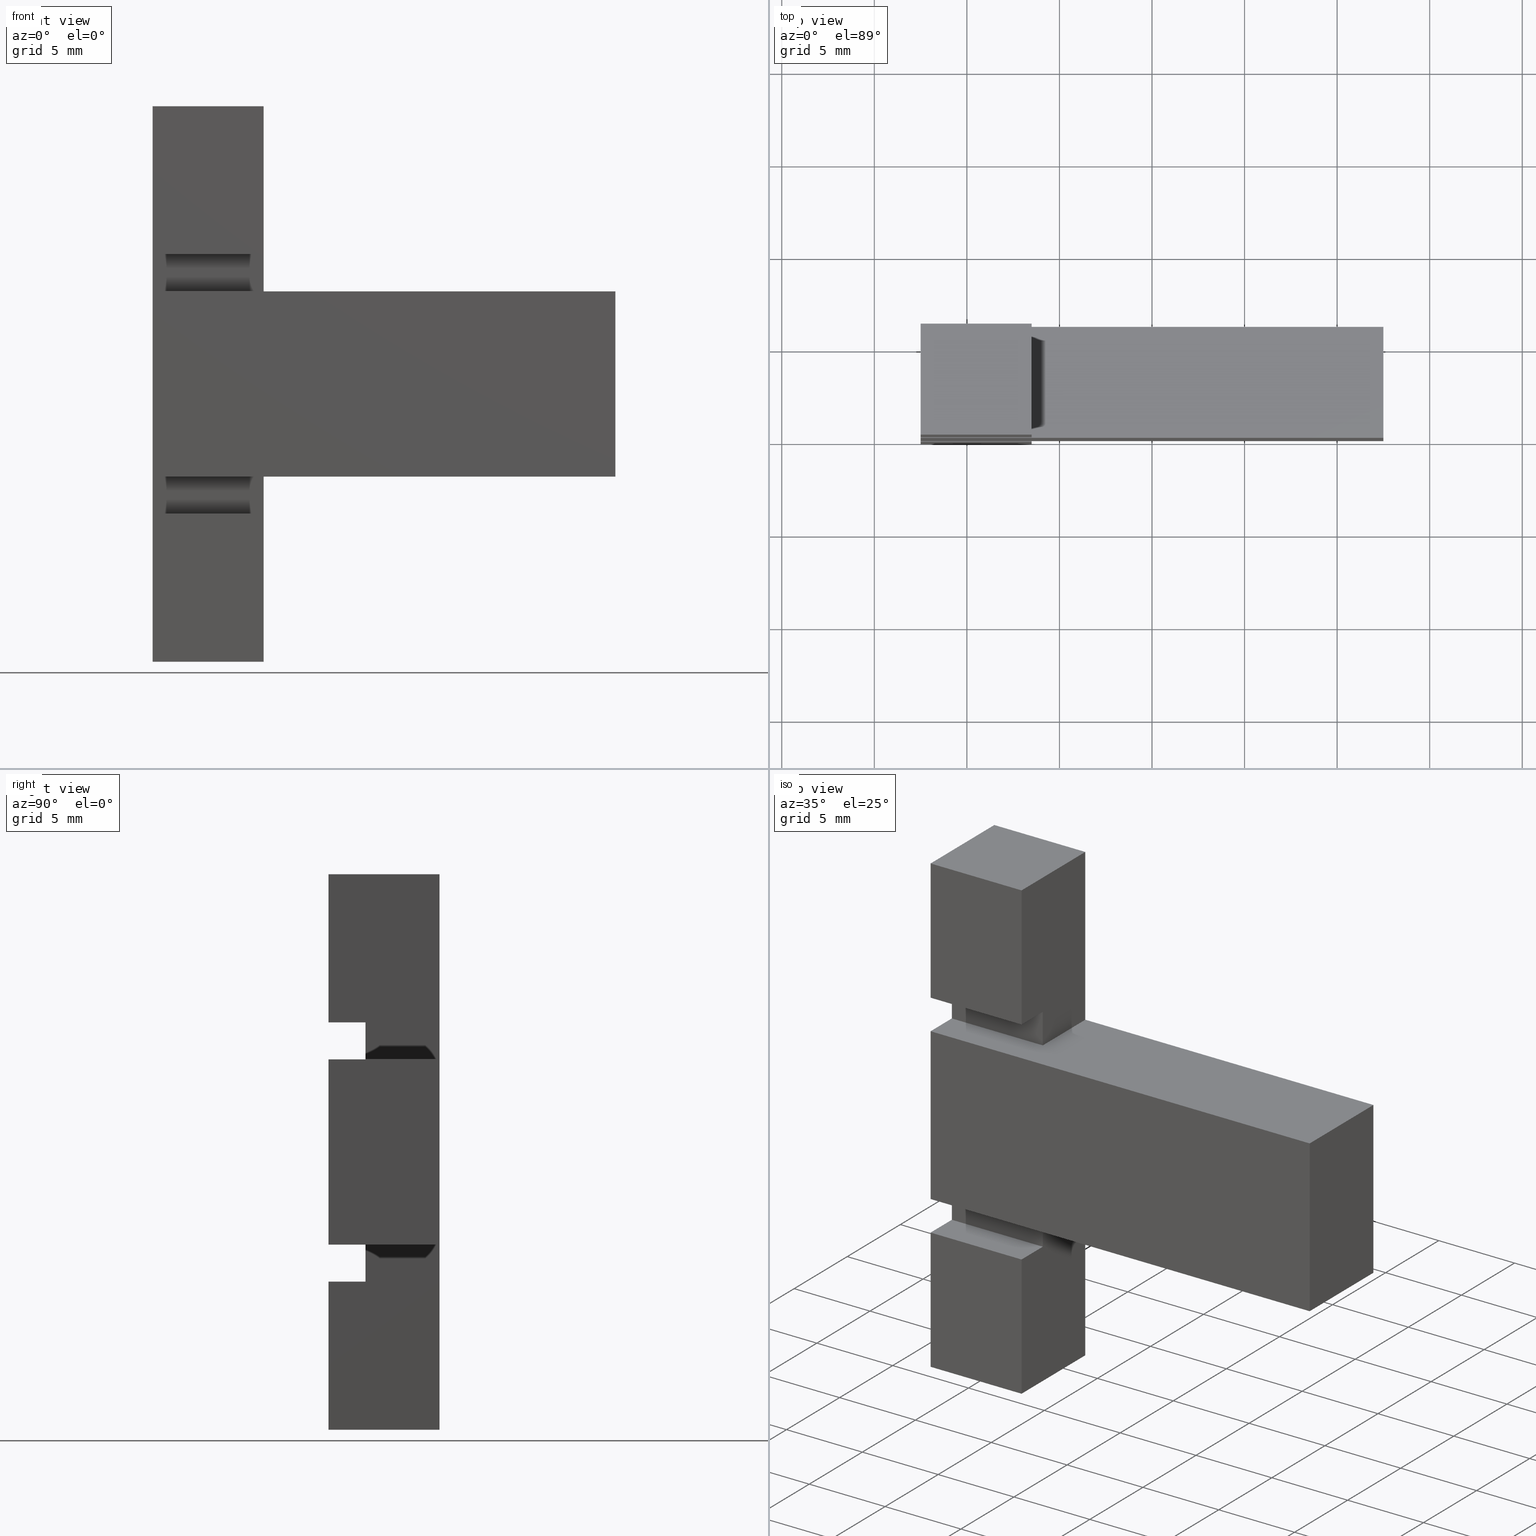
[diagram: canonical four-view strip — front | top / right | iso, engineering-drawing reading convention]
A machine part, canonical four-view strip (front | top / right | iso — engineering-drawing reading convention). The complete STEP part file that produces these views, byte-faithful:
ISO-10303-21;
HEADER;
/* Generated by software containing ST-Developer
 * from STEP Tools, Inc. (www.steptools.com) 
 */

FILE_DESCRIPTION(
/* description */ ('WKZ-0450'),
/* implementation_level */ '2;1');

FILE_NAME(
/* name */ 
'H:\\Eigene Dateien\\CAD Workspace Vault\\CAD\\E_3_Nocken\\E_3_01_Aufs
chwei\X\DFnocke\\04_T- Form, L-Form\\E_3_01_04_15_00_WKZ-0450.stp',
/* time_stamp */ '2024-01-11T12:47:46+01:00',
/* author */ ('dfischer'),
/* organization */ (''),
/* preprocessor_version */ 'ST-DEVELOPER v18.1',
/* originating_system */ 'Autodesk Inventor 2021',
/* authorisation */ '');

FILE_SCHEMA (('AUTOMOTIVE_DESIGN { 1 0 10303 214 3 1 1 }'));
ENDSEC;

DATA;
#10=MECHANICAL_DESIGN_GEOMETRIC_PRESENTATION_REPRESENTATION('',(#13),#519);
#11=SHAPE_REPRESENTATION_RELATIONSHIP('SRR','None',#526,#12);
#12=ADVANCED_BREP_SHAPE_REPRESENTATION('',(#14),#518);
#13=STYLED_ITEM('',(#535),#14);
#14=MANIFOLD_SOLID_BREP('Volumenk\X\F6rper1',#317);
#15=FACE_OUTER_BOUND('',#31,.T.);
#16=FACE_OUTER_BOUND('',#32,.T.);
#17=FACE_OUTER_BOUND('',#33,.T.);
#18=FACE_OUTER_BOUND('',#34,.T.);
#19=FACE_OUTER_BOUND('',#35,.T.);
#20=FACE_OUTER_BOUND('',#36,.T.);
#21=FACE_OUTER_BOUND('',#37,.T.);
#22=FACE_OUTER_BOUND('',#38,.T.);
#23=FACE_OUTER_BOUND('',#39,.T.);
#24=FACE_OUTER_BOUND('',#40,.T.);
#25=FACE_OUTER_BOUND('',#41,.T.);
#26=FACE_OUTER_BOUND('',#42,.T.);
#27=FACE_OUTER_BOUND('',#43,.T.);
#28=FACE_OUTER_BOUND('',#44,.T.);
#29=FACE_OUTER_BOUND('',#45,.T.);
#30=FACE_OUTER_BOUND('',#46,.T.);
#31=EDGE_LOOP('',(#201,#202,#203,#204));
#32=EDGE_LOOP('',(#205,#206,#207,#208));
#33=EDGE_LOOP('',(#209,#210,#211,#212));
#34=EDGE_LOOP('',(#213,#214,#215,#216));
#35=EDGE_LOOP('',(#217,#218,#219,#220));
#36=EDGE_LOOP('',(#221,#222,#223,#224));
#37=EDGE_LOOP('',(#225,#226,#227,#228,#229,#230,#231,#232,#233,#234,#235,
#236));
#38=EDGE_LOOP('',(#237,#238,#239,#240));
#39=EDGE_LOOP('',(#241,#242,#243,#244,#245,#246));
#40=EDGE_LOOP('',(#247,#248,#249,#250,#251,#252));
#41=EDGE_LOOP('',(#253,#254,#255,#256));
#42=EDGE_LOOP('',(#257,#258,#259,#260));
#43=EDGE_LOOP('',(#261,#262,#263,#264,#265,#266));
#44=EDGE_LOOP('',(#267,#268,#269,#270,#271,#272));
#45=EDGE_LOOP('',(#273,#274,#275,#276,#277,#278,#279,#280));
#46=EDGE_LOOP('',(#281,#282,#283,#284));
#47=LINE('',#433,#89);
#48=LINE('',#435,#90);
#49=LINE('',#437,#91);
#50=LINE('',#438,#92);
#51=LINE('',#441,#93);
#52=LINE('',#443,#94);
#53=LINE('',#444,#95);
#54=LINE('',#448,#96);
#55=LINE('',#450,#97);
#56=LINE('',#452,#98);
#57=LINE('',#453,#99);
#58=LINE('',#456,#100);
#59=LINE('',#458,#101);
#60=LINE('',#459,#102);
#61=LINE('',#462,#103);
#62=LINE('',#464,#104);
#63=LINE('',#465,#105);
#64=LINE('',#469,#106);
#65=LINE('',#471,#107);
#66=LINE('',#473,#108);
#67=LINE('',#474,#109);
#68=LINE('',#476,#110);
#69=LINE('',#477,#111);
#70=LINE('',#479,#112);
#71=LINE('',#481,#113);
#72=LINE('',#483,#114);
#73=LINE('',#484,#115);
#74=LINE('',#487,#116);
#75=LINE('',#489,#117);
#76=LINE('',#490,#118);
#77=LINE('',#493,#119);
#78=LINE('',#494,#120);
#79=LINE('',#497,#121);
#80=LINE('',#498,#122);
#81=LINE('',#500,#123);
#82=LINE('',#503,#124);
#83=LINE('',#505,#125);
#84=LINE('',#506,#126);
#85=LINE('',#508,#127);
#86=LINE('',#510,#128);
#87=LINE('',#511,#129);
#88=LINE('',#513,#130);
#89=VECTOR('',#357,10.);
#90=VECTOR('',#358,10.);
#91=VECTOR('',#359,10.);
#92=VECTOR('',#360,10.);
#93=VECTOR('',#363,10.);
#94=VECTOR('',#364,10.);
#95=VECTOR('',#365,10.);
#96=VECTOR('',#368,10.);
#97=VECTOR('',#369,10.);
#98=VECTOR('',#370,10.);
#99=VECTOR('',#371,10.);
#100=VECTOR('',#374,10.);
#101=VECTOR('',#375,10.);
#102=VECTOR('',#376,10.);
#103=VECTOR('',#379,10.);
#104=VECTOR('',#380,10.);
#105=VECTOR('',#381,10.);
#106=VECTOR('',#384,10.);
#107=VECTOR('',#385,10.);
#108=VECTOR('',#386,10.);
#109=VECTOR('',#387,10.);
#110=VECTOR('',#390,10.);
#111=VECTOR('',#391,10.);
#112=VECTOR('',#392,10.);
#113=VECTOR('',#393,10.);
#114=VECTOR('',#394,10.);
#115=VECTOR('',#395,10.);
#116=VECTOR('',#398,10.);
#117=VECTOR('',#399,10.);
#118=VECTOR('',#400,10.);
#119=VECTOR('',#403,10.);
#120=VECTOR('',#404,10.);
#121=VECTOR('',#407,10.);
#122=VECTOR('',#408,10.);
#123=VECTOR('',#411,10.);
#124=VECTOR('',#414,10.);
#125=VECTOR('',#415,10.);
#126=VECTOR('',#416,10.);
#127=VECTOR('',#419,10.);
#128=VECTOR('',#420,10.);
#129=VECTOR('',#421,10.);
#130=VECTOR('',#424,10.);
#131=VERTEX_POINT('',#431);
#132=VERTEX_POINT('',#432);
#133=VERTEX_POINT('',#434);
#134=VERTEX_POINT('',#436);
#135=VERTEX_POINT('',#440);
#136=VERTEX_POINT('',#442);
#137=VERTEX_POINT('',#446);
#138=VERTEX_POINT('',#447);
#139=VERTEX_POINT('',#449);
#140=VERTEX_POINT('',#451);
#141=VERTEX_POINT('',#455);
#142=VERTEX_POINT('',#457);
#143=VERTEX_POINT('',#461);
#144=VERTEX_POINT('',#463);
#145=VERTEX_POINT('',#467);
#146=VERTEX_POINT('',#468);
#147=VERTEX_POINT('',#470);
#148=VERTEX_POINT('',#472);
#149=VERTEX_POINT('',#478);
#150=VERTEX_POINT('',#480);
#151=VERTEX_POINT('',#482);
#152=VERTEX_POINT('',#486);
#153=VERTEX_POINT('',#488);
#154=VERTEX_POINT('',#492);
#155=VERTEX_POINT('',#496);
#156=VERTEX_POINT('',#502);
#157=VERTEX_POINT('',#504);
#158=VERTEX_POINT('',#509);
#159=EDGE_CURVE('',#131,#132,#47,.T.);
#160=EDGE_CURVE('',#131,#133,#48,.T.);
#161=EDGE_CURVE('',#134,#133,#49,.T.);
#162=EDGE_CURVE('',#132,#134,#50,.T.);
#163=EDGE_CURVE('',#135,#131,#51,.T.);
#164=EDGE_CURVE('',#135,#136,#52,.T.);
#165=EDGE_CURVE('',#133,#136,#53,.T.);
#166=EDGE_CURVE('',#137,#138,#54,.T.);
#167=EDGE_CURVE('',#137,#139,#55,.T.);
#168=EDGE_CURVE('',#140,#139,#56,.T.);
#169=EDGE_CURVE('',#138,#140,#57,.T.);
#170=EDGE_CURVE('',#141,#137,#58,.T.);
#171=EDGE_CURVE('',#142,#141,#59,.T.);
#172=EDGE_CURVE('',#139,#142,#60,.T.);
#173=EDGE_CURVE('',#143,#141,#61,.T.);
#174=EDGE_CURVE('',#144,#143,#62,.T.);
#175=EDGE_CURVE('',#142,#144,#63,.T.);
#176=EDGE_CURVE('',#145,#146,#64,.T.);
#177=EDGE_CURVE('',#147,#145,#65,.T.);
#178=EDGE_CURVE('',#147,#148,#66,.T.);
#179=EDGE_CURVE('',#146,#148,#67,.T.);
#180=EDGE_CURVE('',#136,#146,#68,.T.);
#181=EDGE_CURVE('',#148,#140,#69,.T.);
#182=EDGE_CURVE('',#144,#149,#70,.T.);
#183=EDGE_CURVE('',#150,#149,#71,.T.);
#184=EDGE_CURVE('',#151,#150,#72,.T.);
#185=EDGE_CURVE('',#151,#134,#73,.T.);
#186=EDGE_CURVE('',#145,#152,#74,.T.);
#187=EDGE_CURVE('',#153,#152,#75,.T.);
#188=EDGE_CURVE('',#147,#153,#76,.T.);
#189=EDGE_CURVE('',#154,#153,#77,.T.);
#190=EDGE_CURVE('',#138,#154,#78,.T.);
#191=EDGE_CURVE('',#155,#154,#79,.T.);
#192=EDGE_CURVE('',#143,#155,#80,.T.);
#193=EDGE_CURVE('',#149,#155,#81,.T.);
#194=EDGE_CURVE('',#156,#151,#82,.T.);
#195=EDGE_CURVE('',#157,#150,#83,.T.);
#196=EDGE_CURVE('',#156,#157,#84,.T.);
#197=EDGE_CURVE('',#132,#156,#85,.T.);
#198=EDGE_CURVE('',#158,#157,#86,.T.);
#199=EDGE_CURVE('',#135,#158,#87,.T.);
#200=EDGE_CURVE('',#152,#158,#88,.T.);
#201=ORIENTED_EDGE('',*,*,#159,.F.);
#202=ORIENTED_EDGE('',*,*,#160,.T.);
#203=ORIENTED_EDGE('',*,*,#161,.F.);
#204=ORIENTED_EDGE('',*,*,#162,.F.);
#205=ORIENTED_EDGE('',*,*,#163,.F.);
#206=ORIENTED_EDGE('',*,*,#164,.T.);
#207=ORIENTED_EDGE('',*,*,#165,.F.);
#208=ORIENTED_EDGE('',*,*,#160,.F.);
#209=ORIENTED_EDGE('',*,*,#166,.F.);
#210=ORIENTED_EDGE('',*,*,#167,.T.);
#211=ORIENTED_EDGE('',*,*,#168,.F.);
#212=ORIENTED_EDGE('',*,*,#169,.F.);
#213=ORIENTED_EDGE('',*,*,#170,.F.);
#214=ORIENTED_EDGE('',*,*,#171,.F.);
#215=ORIENTED_EDGE('',*,*,#172,.F.);
#216=ORIENTED_EDGE('',*,*,#167,.F.);
#217=ORIENTED_EDGE('',*,*,#171,.T.);
#218=ORIENTED_EDGE('',*,*,#173,.F.);
#219=ORIENTED_EDGE('',*,*,#174,.F.);
#220=ORIENTED_EDGE('',*,*,#175,.F.);
#221=ORIENTED_EDGE('',*,*,#176,.F.);
#222=ORIENTED_EDGE('',*,*,#177,.F.);
#223=ORIENTED_EDGE('',*,*,#178,.T.);
#224=ORIENTED_EDGE('',*,*,#179,.F.);
#225=ORIENTED_EDGE('',*,*,#161,.T.);
#226=ORIENTED_EDGE('',*,*,#165,.T.);
#227=ORIENTED_EDGE('',*,*,#180,.T.);
#228=ORIENTED_EDGE('',*,*,#179,.T.);
#229=ORIENTED_EDGE('',*,*,#181,.T.);
#230=ORIENTED_EDGE('',*,*,#168,.T.);
#231=ORIENTED_EDGE('',*,*,#172,.T.);
#232=ORIENTED_EDGE('',*,*,#175,.T.);
#233=ORIENTED_EDGE('',*,*,#182,.T.);
#234=ORIENTED_EDGE('',*,*,#183,.F.);
#235=ORIENTED_EDGE('',*,*,#184,.F.);
#236=ORIENTED_EDGE('',*,*,#185,.T.);
#237=ORIENTED_EDGE('',*,*,#177,.T.);
#238=ORIENTED_EDGE('',*,*,#186,.T.);
#239=ORIENTED_EDGE('',*,*,#187,.F.);
#240=ORIENTED_EDGE('',*,*,#188,.F.);
#241=ORIENTED_EDGE('',*,*,#178,.F.);
#242=ORIENTED_EDGE('',*,*,#188,.T.);
#243=ORIENTED_EDGE('',*,*,#189,.F.);
#244=ORIENTED_EDGE('',*,*,#190,.F.);
#245=ORIENTED_EDGE('',*,*,#169,.T.);
#246=ORIENTED_EDGE('',*,*,#181,.F.);
#247=ORIENTED_EDGE('',*,*,#166,.T.);
#248=ORIENTED_EDGE('',*,*,#190,.T.);
#249=ORIENTED_EDGE('',*,*,#191,.F.);
#250=ORIENTED_EDGE('',*,*,#192,.F.);
#251=ORIENTED_EDGE('',*,*,#173,.T.);
#252=ORIENTED_EDGE('',*,*,#170,.T.);
#253=ORIENTED_EDGE('',*,*,#174,.T.);
#254=ORIENTED_EDGE('',*,*,#192,.T.);
#255=ORIENTED_EDGE('',*,*,#193,.F.);
#256=ORIENTED_EDGE('',*,*,#182,.F.);
#257=ORIENTED_EDGE('',*,*,#194,.T.);
#258=ORIENTED_EDGE('',*,*,#184,.T.);
#259=ORIENTED_EDGE('',*,*,#195,.F.);
#260=ORIENTED_EDGE('',*,*,#196,.F.);
#261=ORIENTED_EDGE('',*,*,#159,.T.);
#262=ORIENTED_EDGE('',*,*,#197,.T.);
#263=ORIENTED_EDGE('',*,*,#196,.T.);
#264=ORIENTED_EDGE('',*,*,#198,.F.);
#265=ORIENTED_EDGE('',*,*,#199,.F.);
#266=ORIENTED_EDGE('',*,*,#163,.T.);
#267=ORIENTED_EDGE('',*,*,#176,.T.);
#268=ORIENTED_EDGE('',*,*,#180,.F.);
#269=ORIENTED_EDGE('',*,*,#164,.F.);
#270=ORIENTED_EDGE('',*,*,#199,.T.);
#271=ORIENTED_EDGE('',*,*,#200,.F.);
#272=ORIENTED_EDGE('',*,*,#186,.F.);
#273=ORIENTED_EDGE('',*,*,#200,.T.);
#274=ORIENTED_EDGE('',*,*,#198,.T.);
#275=ORIENTED_EDGE('',*,*,#195,.T.);
#276=ORIENTED_EDGE('',*,*,#183,.T.);
#277=ORIENTED_EDGE('',*,*,#193,.T.);
#278=ORIENTED_EDGE('',*,*,#191,.T.);
#279=ORIENTED_EDGE('',*,*,#189,.T.);
#280=ORIENTED_EDGE('',*,*,#187,.T.);
#281=ORIENTED_EDGE('',*,*,#162,.T.);
#282=ORIENTED_EDGE('',*,*,#185,.F.);
#283=ORIENTED_EDGE('',*,*,#194,.F.);
#284=ORIENTED_EDGE('',*,*,#197,.F.);
#285=PLANE('',#337);
#286=PLANE('',#338);
#287=PLANE('',#339);
#288=PLANE('',#340);
#289=PLANE('',#341);
#290=PLANE('',#342);
#291=PLANE('',#343);
#292=PLANE('',#344);
#293=PLANE('',#345);
#294=PLANE('',#346);
#295=PLANE('',#347);
#296=PLANE('',#348);
#297=PLANE('',#349);
#298=PLANE('',#350);
#299=PLANE('',#351);
#300=PLANE('',#352);
#301=ADVANCED_FACE('',(#15),#285,.F.);
#302=ADVANCED_FACE('',(#16),#286,.F.);
#303=ADVANCED_FACE('',(#17),#287,.F.);
#304=ADVANCED_FACE('',(#18),#288,.F.);
#305=ADVANCED_FACE('',(#19),#289,.F.);
#306=ADVANCED_FACE('',(#20),#290,.F.);
#307=ADVANCED_FACE('',(#21),#291,.T.);
#308=ADVANCED_FACE('',(#22),#292,.T.);
#309=ADVANCED_FACE('',(#23),#293,.T.);
#310=ADVANCED_FACE('',(#24),#294,.T.);
#311=ADVANCED_FACE('',(#25),#295,.T.);
#312=ADVANCED_FACE('',(#26),#296,.T.);
#313=ADVANCED_FACE('',(#27),#297,.T.);
#314=ADVANCED_FACE('',(#28),#298,.T.);
#315=ADVANCED_FACE('',(#29),#299,.T.);
#316=ADVANCED_FACE('',(#30),#300,.F.);
#317=CLOSED_SHELL('',(#301,#302,#303,#304,#305,#306,#307,#308,#309,#310,
#311,#312,#313,#314,#315,#316));
#318=DERIVED_UNIT_ELEMENT(#320,1.);
#319=DERIVED_UNIT_ELEMENT(#521,3.);
#320=(
MASS_UNIT()
NAMED_UNIT(*)
SI_UNIT($,.GRAM.)
);
#321=DERIVED_UNIT((#318,#319));
#322=MEASURE_REPRESENTATION_ITEM('density measure',
POSITIVE_RATIO_MEASURE(1.),#321);
#323=PROPERTY_DEFINITION_REPRESENTATION(#328,#325);
#324=PROPERTY_DEFINITION_REPRESENTATION(#329,#326);
#325=REPRESENTATION('material name',(#327),#518);
#326=REPRESENTATION('density',(#322),#518);
#327=DESCRIPTIVE_REPRESENTATION_ITEM('Generisch','Generisch');
#328=PROPERTY_DEFINITION('material property','material name',#528);
#329=PROPERTY_DEFINITION('material property','density of part',#528);
#330=DATE_TIME_ROLE('creation_date');
#331=APPLIED_DATE_AND_TIME_ASSIGNMENT(#332,#330,(#528));
#332=DATE_AND_TIME(#333,#334);
#333=CALENDAR_DATE(2023,20,7);
#334=LOCAL_TIME(0,0,0.,#335);
#335=COORDINATED_UNIVERSAL_TIME_OFFSET(0,0,.BEHIND.);
#336=AXIS2_PLACEMENT_3D('placement',#429,#353,#354);
#337=AXIS2_PLACEMENT_3D('',#430,#355,#356);
#338=AXIS2_PLACEMENT_3D('',#439,#361,#362);
#339=AXIS2_PLACEMENT_3D('',#445,#366,#367);
#340=AXIS2_PLACEMENT_3D('',#454,#372,#373);
#341=AXIS2_PLACEMENT_3D('',#460,#377,#378);
#342=AXIS2_PLACEMENT_3D('',#466,#382,#383);
#343=AXIS2_PLACEMENT_3D('',#475,#388,#389);
#344=AXIS2_PLACEMENT_3D('',#485,#396,#397);
#345=AXIS2_PLACEMENT_3D('',#491,#401,#402);
#346=AXIS2_PLACEMENT_3D('',#495,#405,#406);
#347=AXIS2_PLACEMENT_3D('',#499,#409,#410);
#348=AXIS2_PLACEMENT_3D('',#501,#412,#413);
#349=AXIS2_PLACEMENT_3D('',#507,#417,#418);
#350=AXIS2_PLACEMENT_3D('',#512,#422,#423);
#351=AXIS2_PLACEMENT_3D('',#514,#425,#426);
#352=AXIS2_PLACEMENT_3D('',#515,#427,#428);
#353=DIRECTION('axis',(0.,0.,1.));
#354=DIRECTION('refdir',(1.,0.,0.));
#355=DIRECTION('center_axis',(-3.70074341541719E-16,0.,-1.));
#356=DIRECTION('ref_axis',(0.,-1.,0.));
#357=DIRECTION('',(0.,-1.,0.));
#358=DIRECTION('',(-1.,0.,3.70074341541719E-16));
#359=DIRECTION('',(0.,1.,0.));
#360=DIRECTION('',(-1.,0.,3.70074341541719E-16));
#361=DIRECTION('center_axis',(5.13581318503262E-32,1.,1.38777878078144E-16));
#362=DIRECTION('ref_axis',(-4.44089209850063E-16,1.38777878078144E-16,-1.));
#363=DIRECTION('',(-2.22044604925032E-16,1.38777878078144E-16,-1.));
#364=DIRECTION('',(-1.,0.,3.70074341541719E-16));
#365=DIRECTION('',(0.,-1.38777878078144E-16,1.));
#366=DIRECTION('center_axis',(5.13581318503263E-32,1.,1.38777878078145E-16));
#367=DIRECTION('ref_axis',(-4.44089209850063E-16,1.38777878078145E-16,-1.));
#368=DIRECTION('',(-4.44089209850063E-16,1.38777878078145E-16,-1.));
#369=DIRECTION('',(-1.,0.,3.70074341541719E-16));
#370=DIRECTION('',(0.,-1.38777878078145E-16,1.));
#371=DIRECTION('',(-1.,0.,3.70074341541719E-16));
#372=DIRECTION('center_axis',(3.70074341541719E-16,5.55111512312578E-16,
1.));
#373=DIRECTION('ref_axis',(-2.46519032881566E-31,1.,-5.55111512312578E-16));
#374=DIRECTION('',(-2.46519032881566E-31,1.,-5.55111512312578E-16));
#375=DIRECTION('',(1.,0.,-3.70074341541719E-16));
#376=DIRECTION('',(0.,-1.,5.55111512312578E-16));
#377=DIRECTION('center_axis',(0.,1.,0.));
#378=DIRECTION('ref_axis',(0.,0.,1.));
#379=DIRECTION('',(-4.44089209850063E-16,0.,-1.));
#380=DIRECTION('',(1.,0.,2.96059473233376E-15));
#381=DIRECTION('',(0.,0.,1.));
#382=DIRECTION('center_axis',(0.,1.,0.));
#383=DIRECTION('ref_axis',(0.,0.,1.));
#384=DIRECTION('',(-1.,0.,0.));
#385=DIRECTION('',(-2.22044604925031E-16,0.,-1.));
#386=DIRECTION('',(-1.,0.,3.70074341541719E-16));
#387=DIRECTION('',(0.,0.,1.));
#388=DIRECTION('center_axis',(-1.,0.,0.));
#389=DIRECTION('ref_axis',(0.,0.,1.));
#390=DIRECTION('',(0.,-1.,0.));
#391=DIRECTION('',(0.,1.,0.));
#392=DIRECTION('',(0.,1.,0.));
#393=DIRECTION('',(0.,0.,1.));
#394=DIRECTION('',(0.,1.,0.));
#395=DIRECTION('',(0.,0.,1.));
#396=DIRECTION('center_axis',(1.,0.,-2.22044604925031E-16));
#397=DIRECTION('ref_axis',(-2.22044604925031E-16,0.,-1.));
#398=DIRECTION('',(0.,1.,0.));
#399=DIRECTION('',(-2.22044604925031E-16,0.,-1.));
#400=DIRECTION('',(0.,1.,0.));
#401=DIRECTION('center_axis',(0.,0.,1.));
#402=DIRECTION('ref_axis',(1.,0.,0.));
#403=DIRECTION('',(1.,0.,0.));
#404=DIRECTION('',(0.,1.,0.));
#405=DIRECTION('center_axis',(1.,0.,-4.44089209850063E-16));
#406=DIRECTION('ref_axis',(-4.44089209850063E-16,0.,-1.));
#407=DIRECTION('',(-4.44089209850063E-16,0.,-1.));
#408=DIRECTION('',(0.,1.,0.));
#409=DIRECTION('center_axis',(-2.96059473233376E-15,0.,1.));
#410=DIRECTION('ref_axis',(1.,0.,2.96059473233376E-15));
#411=DIRECTION('',(1.,0.,2.96059473233376E-15));
#412=DIRECTION('center_axis',(1.03620815631682E-14,0.,-1.));
#413=DIRECTION('ref_axis',(-1.,0.,-1.03620815631682E-14));
#414=DIRECTION('',(-1.,0.,-1.03620815631682E-14));
#415=DIRECTION('',(-1.,0.,-1.03620815631682E-14));
#416=DIRECTION('',(0.,1.,0.));
#417=DIRECTION('center_axis',(1.,0.,-2.22044604925032E-16));
#418=DIRECTION('ref_axis',(-2.22044604925032E-16,0.,-1.));
#419=DIRECTION('',(-2.22044604925032E-16,0.,-1.));
#420=DIRECTION('',(-2.22044604925032E-16,0.,-1.));
#421=DIRECTION('',(0.,1.,0.));
#422=DIRECTION('center_axis',(0.,0.,-1.));
#423=DIRECTION('ref_axis',(-1.,0.,0.));
#424=DIRECTION('',(-1.,0.,0.));
#425=DIRECTION('center_axis',(0.,1.,0.));
#426=DIRECTION('ref_axis',(0.,0.,1.));
#427=DIRECTION('center_axis',(0.,1.,0.));
#428=DIRECTION('ref_axis',(0.,0.,1.));
#429=CARTESIAN_POINT('',(0.,0.,0.));
#430=CARTESIAN_POINT('Origin',(-6.50000000000001,2.,-7.));
#431=CARTESIAN_POINT('',(-6.50000000000001,2.,-7.));
#432=CARTESIAN_POINT('',(-6.50000000000001,2.44929359829471E-16,-7.));
#433=CARTESIAN_POINT('',(-6.49999999999999,1.,-7.));
#434=CARTESIAN_POINT('',(-12.5,2.,-7.));
#435=CARTESIAN_POINT('',(-6.50000000000001,2.,-7.));
#436=CARTESIAN_POINT('',(-12.5,2.77555756156289E-16,-7.));
#437=CARTESIAN_POINT('',(-12.5,1.,-7.));
#438=CARTESIAN_POINT('',(-3.25,0.,-7.));
#439=CARTESIAN_POINT('Origin',(-6.50000000000001,2.,-5.));
#440=CARTESIAN_POINT('',(-6.50000000000001,2.,-5.));
#441=CARTESIAN_POINT('',(-6.49999999999999,2.,-5.));
#442=CARTESIAN_POINT('',(-12.5,2.,-5.));
#443=CARTESIAN_POINT('',(-6.50000000000001,2.,-5.));
#444=CARTESIAN_POINT('',(-12.5,2.,-10.));
#445=CARTESIAN_POINT('Origin',(-6.5,2.,7.));
#446=CARTESIAN_POINT('',(-6.5,2.,7.));
#447=CARTESIAN_POINT('',(-6.5,2.,5.));
#448=CARTESIAN_POINT('',(-6.5,2.,11.));
#449=CARTESIAN_POINT('',(-12.5,2.,7.));
#450=CARTESIAN_POINT('',(-6.5,2.,7.));
#451=CARTESIAN_POINT('',(-12.5,2.,5.));
#452=CARTESIAN_POINT('',(-12.5,2.,-4.00000000000001));
#453=CARTESIAN_POINT('',(-6.5,2.,5.));
#454=CARTESIAN_POINT('Origin',(-6.5,-2.77555756156289E-16,7.));
#455=CARTESIAN_POINT('',(-6.5,-2.44929359829471E-16,7.));
#456=CARTESIAN_POINT('',(-6.5,-2.35922392732846E-15,7.));
#457=CARTESIAN_POINT('',(-12.5,-2.77555756156289E-16,7.));
#458=CARTESIAN_POINT('',(-3.24999999999999,0.,7.));
#459=CARTESIAN_POINT('',(-12.5,5.96744875736022E-15,7.));
#460=CARTESIAN_POINT('Origin',(1.22124532708767E-14,0.,-8.88178419700125E-15));
#461=CARTESIAN_POINT('',(-6.5,0.,15.));
#462=CARTESIAN_POINT('',(-6.5,0.,15.));
#463=CARTESIAN_POINT('',(-12.5,0.,15.));
#464=CARTESIAN_POINT('',(-12.5,0.,15.));
#465=CARTESIAN_POINT('',(-12.5,0.,-15.));
#466=CARTESIAN_POINT('Origin',(1.22124532708767E-14,0.,-8.88178419700125E-15));
#467=CARTESIAN_POINT('',(12.5,0.,-5.));
#468=CARTESIAN_POINT('',(-12.5,0.,-5.));
#469=CARTESIAN_POINT('',(12.5,0.,-5.));
#470=CARTESIAN_POINT('',(12.5,0.,5.));
#471=CARTESIAN_POINT('',(12.5,0.,5.));
#472=CARTESIAN_POINT('',(-12.5,0.,5.));
#473=CARTESIAN_POINT('',(-3.24999999999999,0.,5.));
#474=CARTESIAN_POINT('',(-12.5,0.,-15.));
#475=CARTESIAN_POINT('Origin',(-12.5,0.,-15.));
#476=CARTESIAN_POINT('',(-12.5,0.,-5.));
#477=CARTESIAN_POINT('',(-12.5,1.,5.));
#478=CARTESIAN_POINT('',(-12.5,6.,15.));
#479=CARTESIAN_POINT('',(-12.5,0.,15.));
#480=CARTESIAN_POINT('',(-12.5,6.,-15.));
#481=CARTESIAN_POINT('',(-12.5,6.,-15.));
#482=CARTESIAN_POINT('',(-12.5,0.,-15.));
#483=CARTESIAN_POINT('',(-12.5,0.,-15.));
#484=CARTESIAN_POINT('',(-12.5,0.,-15.));
#485=CARTESIAN_POINT('Origin',(12.5,0.,5.));
#486=CARTESIAN_POINT('',(12.5,6.,-5.));
#487=CARTESIAN_POINT('',(12.5,0.,-5.));
#488=CARTESIAN_POINT('',(12.5,6.,5.));
#489=CARTESIAN_POINT('',(12.5,6.,5.));
#490=CARTESIAN_POINT('',(12.5,0.,5.));
#491=CARTESIAN_POINT('Origin',(-6.5,0.,5.));
#492=CARTESIAN_POINT('',(-6.5,6.,5.));
#493=CARTESIAN_POINT('',(-6.5,6.,5.));
#494=CARTESIAN_POINT('',(-6.5,0.,5.));
#495=CARTESIAN_POINT('Origin',(-6.5,0.,15.));
#496=CARTESIAN_POINT('',(-6.5,6.,15.));
#497=CARTESIAN_POINT('',(-6.5,6.,15.));
#498=CARTESIAN_POINT('',(-6.5,0.,15.));
#499=CARTESIAN_POINT('Origin',(-12.5,0.,15.));
#500=CARTESIAN_POINT('',(-12.5,6.,15.));
#501=CARTESIAN_POINT('Origin',(-6.49999999999999,0.,-15.));
#502=CARTESIAN_POINT('',(-6.49999999999999,0.,-15.));
#503=CARTESIAN_POINT('',(-6.49999999999999,0.,-15.));
#504=CARTESIAN_POINT('',(-6.49999999999999,6.,-15.));
#505=CARTESIAN_POINT('',(-6.49999999999999,6.,-15.));
#506=CARTESIAN_POINT('',(-6.49999999999999,0.,-15.));
#507=CARTESIAN_POINT('Origin',(-6.49999999999999,0.,-5.));
#508=CARTESIAN_POINT('',(-6.49999999999999,0.,-5.));
#509=CARTESIAN_POINT('',(-6.49999999999999,6.,-5.));
#510=CARTESIAN_POINT('',(-6.49999999999999,6.,-5.));
#511=CARTESIAN_POINT('',(-6.49999999999999,0.,-5.));
#512=CARTESIAN_POINT('Origin',(12.5,0.,-5.));
#513=CARTESIAN_POINT('',(12.5,6.,-5.));
#514=CARTESIAN_POINT('Origin',(1.11022302462516E-14,6.,-8.88178419700125E-15));
#515=CARTESIAN_POINT('Origin',(1.22124532708767E-14,0.,-8.88178419700125E-15));
#516=UNCERTAINTY_MEASURE_WITH_UNIT(LENGTH_MEASURE(0.01),#520,
'DISTANCE_ACCURACY_VALUE',
'Maximum model space distance between geometric entities at asserted c
onnectivities');
#517=UNCERTAINTY_MEASURE_WITH_UNIT(LENGTH_MEASURE(0.01),#520,
'DISTANCE_ACCURACY_VALUE',
'Maximum model space distance between geometric entities at asserted c
onnectivities');
#518=(
GEOMETRIC_REPRESENTATION_CONTEXT(3)
GLOBAL_UNCERTAINTY_ASSIGNED_CONTEXT((#516))
GLOBAL_UNIT_ASSIGNED_CONTEXT((#520,#522,#523))
REPRESENTATION_CONTEXT('','3D')
);
#519=(
GEOMETRIC_REPRESENTATION_CONTEXT(3)
GLOBAL_UNCERTAINTY_ASSIGNED_CONTEXT((#517))
GLOBAL_UNIT_ASSIGNED_CONTEXT((#520,#522,#523))
REPRESENTATION_CONTEXT('','3D')
);
#520=(
LENGTH_UNIT()
NAMED_UNIT(*)
SI_UNIT(.MILLI.,.METRE.)
);
#521=(
LENGTH_UNIT()
NAMED_UNIT(*)
SI_UNIT(.CENTI.,.METRE.)
);
#522=(
NAMED_UNIT(*)
PLANE_ANGLE_UNIT()
SI_UNIT($,.RADIAN.)
);
#523=(
NAMED_UNIT(*)
SI_UNIT($,.STERADIAN.)
SOLID_ANGLE_UNIT()
);
#524=SHAPE_DEFINITION_REPRESENTATION(#525,#526);
#525=PRODUCT_DEFINITION_SHAPE('',$,#528);
#526=SHAPE_REPRESENTATION('',(#336),#518);
#527=PRODUCT_DEFINITION_CONTEXT('part definition',#532,'design');
#528=PRODUCT_DEFINITION('E_3_01_04_15_00_WKZ-0450',
'E_3_01_04_15_00_WKZ-0450',#529,#527);
#529=PRODUCT_DEFINITION_FORMATION('',$,#534);
#530=PRODUCT_RELATED_PRODUCT_CATEGORY('E_3_01_04_15_00_WKZ-0450',
'E_3_01_04_15_00_WKZ-0450',(#534));
#531=APPLICATION_PROTOCOL_DEFINITION('international standard',
'automotive_design',2009,#532);
#532=APPLICATION_CONTEXT(
'Core Data for Automotive Mechanical Design Process');
#533=PRODUCT_CONTEXT('part definition',#532,'mechanical');
#534=PRODUCT('E_3_01_04_15_00_WKZ-0450','E_3_01_04_15_00_WKZ-0450',
'WKZ-0450',(#533));
#535=PRESENTATION_STYLE_ASSIGNMENT((#536));
#536=SURFACE_STYLE_USAGE(.BOTH.,#539);
#537=SURFACE_STYLE_RENDERING_WITH_PROPERTIES($,#543,(#538));
#538=SURFACE_STYLE_TRANSPARENT(0.);
#539=SURFACE_SIDE_STYLE('',(#540,#537));
#540=SURFACE_STYLE_FILL_AREA(#541);
#541=FILL_AREA_STYLE('',(#542));
#542=FILL_AREA_STYLE_COLOUR('',#543);
#543=COLOUR_RGB('',0.749019607843137,0.749019607843137,0.749019607843137);
ENDSEC;
END-ISO-10303-21;
